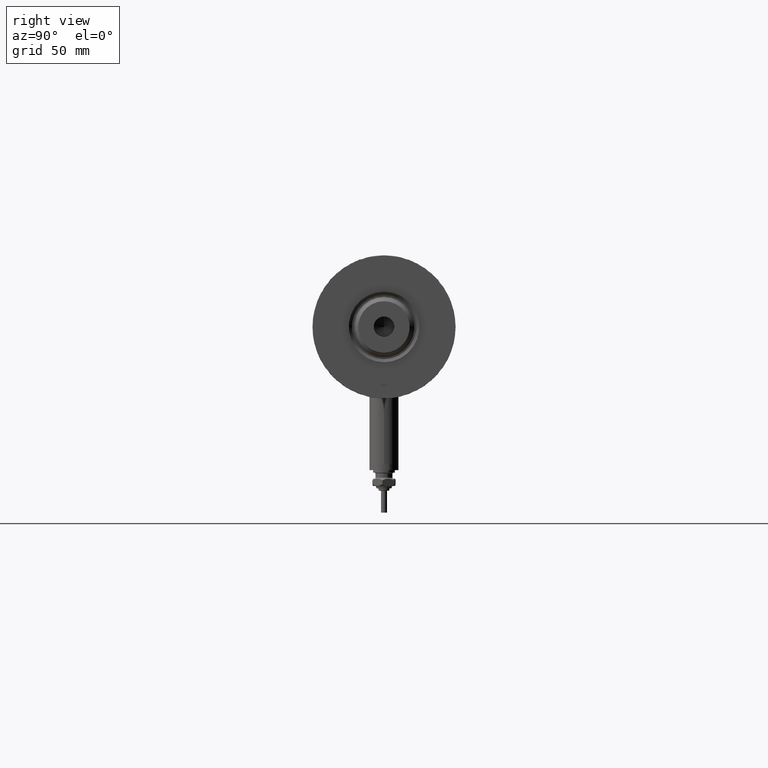
[diagram: clean part render]
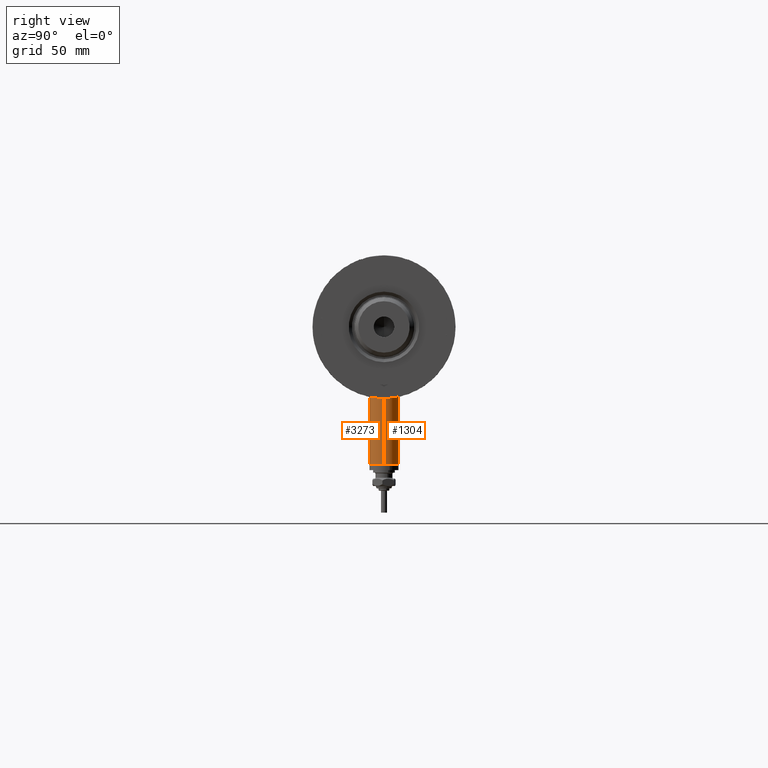
[diagram: same view with one multi-face feature highlighted, each face labeled with its STEP entity id]
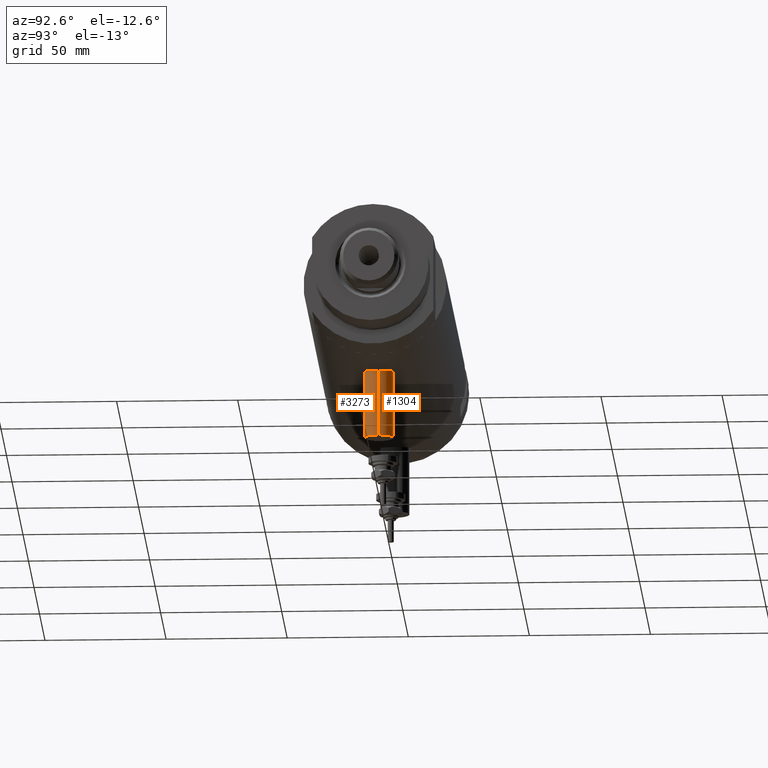
[diagram: same view with one multi-face feature highlighted, each face labeled with its STEP entity id]
A machine part, right view. The highlighted faces form ONE feature: a constant-radius fillet chain: 2 tangent blend faces with common blend radius 6 mm. The faces share edges in the B-rep.
A second angle (auxiliary view) of the same feature is appended — it is thin or edge-on in the first view.
Their STEP definitions:
[1] entity #1304 (Cylinder):
#3 = DIRECTION ( 'NONE',  ( -1.000000000000000000, 0.000000000000000000, 0.000000000000000000 ) ) ;
#74 = VERTEX_POINT ( 'NONE', #5805 ) ;
#307 = LINE ( 'NONE', #5391, #1855 ) ;
#330 = CIRCLE ( 'NONE', #4016, 6.000000000000005329 ) ;
#725 = ORIENTED_EDGE ( 'NONE', *, *, #3343, .T. ) ;
#767 = EDGE_CURVE ( 'NONE', #2793, #5567, #330, .T. ) ;
#846 = DIRECTION ( 'NONE',  ( 1.000000000000000000, -0.000000000000000000, -0.000000000000000000 ) ) ;
#1272 = DIRECTION ( 'NONE',  ( 0.000000000000000000, 0.000000000000000000, -1.000000000000000000 ) ) ;
#1304 = ADVANCED_FACE ( 'NONE', ( #5321 ), #4464, .T. ) ;
#1524 = CARTESIAN_POINT ( 'NONE',  ( -56.60000000000000142, 7.347880794884119736E-16, -60.29999999999999005 ) ) ;
#1711 = CARTESIAN_POINT ( 'NONE',  ( -56.60000000000000142, 0.000000000000000000, -66.29999999999999716 ) ) ;
#1811 = DIRECTION ( 'NONE',  ( 0.000000000000000000, 0.000000000000000000, 1.000000000000000000 ) ) ;
#1836 = DIRECTION ( 'NONE',  ( 0.000000000000000000, 0.000000000000000000, 1.000000000000000000 ) ) ;
#1849 = VERTEX_POINT ( 'NONE', #4020 ) ;
#1855 = VECTOR ( 'NONE', #846, 1000.000000000000000 ) ;
#1977 = ORIENTED_EDGE ( 'NONE', *, *, #3692, .T. ) ;
#2539 = AXIS2_PLACEMENT_3D ( 'NONE', #2770, #3695, #1836 ) ;
#2606 = DIRECTION ( 'NONE',  ( 1.000000000000000000, -0.000000000000000000, -0.000000000000000000 ) ) ;
#2639 = DIRECTION ( 'NONE',  ( 1.000000000000000000, -0.000000000000000000, -0.000000000000000000 ) ) ;
#2770 = CARTESIAN_POINT ( 'NONE',  ( -28.30000000000000071, 0.000000000000000000, -66.29999999999999716 ) ) ;
#2793 = VERTEX_POINT ( 'NONE', #1524 ) ;
#3037 = LINE ( 'NONE', #4924, #3410 ) ;
#3343 = EDGE_CURVE ( 'NONE', #1849, #74, #3948, .T. ) ;
#3410 = VECTOR ( 'NONE', #2639, 1000.000000000000000 ) ;
#3477 = ORIENTED_EDGE ( 'NONE', *, *, #5590, .F. ) ;
#3670 = EDGE_LOOP ( 'NONE', ( #4598, #1977, #725, #3477 ) ) ;
#3692 = EDGE_CURVE ( 'NONE', #2793, #1849, #3037, .T. ) ;
#3695 = DIRECTION ( 'NONE',  ( -1.000000000000000000, 0.000000000000000000, 0.000000000000000000 ) ) ;
#3948 = CIRCLE ( 'NONE', #2539, 6.000000000000005329 ) ;
#4016 = AXIS2_PLACEMENT_3D ( 'NONE', #5451, #3, #1811 ) ;
#4020 = CARTESIAN_POINT ( 'NONE',  ( -28.30000000000000071, 7.347880794884119736E-16, -60.29999999999999005 ) ) ;
#4464 = CYLINDRICAL_SURFACE ( 'NONE', #5873, 6.000000000000005329 ) ;
#4598 = ORIENTED_EDGE ( 'NONE', *, *, #767, .F. ) ;
#4924 = CARTESIAN_POINT ( 'NONE',  ( -56.60000000000000142, 7.347880794884122694E-16, -60.29999999999999005 ) ) ;
#4964 = CARTESIAN_POINT ( 'NONE',  ( -56.60000000000000142, 0.000000000000000000, -72.29999999999999716 ) ) ;
#5321 = FACE_OUTER_BOUND ( 'NONE', #3670, .T. ) ;
#5391 = CARTESIAN_POINT ( 'NONE',  ( -56.60000000000000142, 0.000000000000000000, -72.29999999999999716 ) ) ;
#5451 = CARTESIAN_POINT ( 'NONE',  ( -56.60000000000000142, 0.000000000000000000, -66.29999999999999716 ) ) ;
#5567 = VERTEX_POINT ( 'NONE', #4964 ) ;
#5590 = EDGE_CURVE ( 'NONE', #5567, #74, #307, .T. ) ;
#5805 = CARTESIAN_POINT ( 'NONE',  ( -28.30000000000000071, 0.000000000000000000, -72.29999999999999716 ) ) ;
#5873 = AXIS2_PLACEMENT_3D ( 'NONE', #1711, #2606, #1272 ) ;
[2] entity #3273 (Cylinder):
#74 = VERTEX_POINT ( 'NONE', #5805 ) ;
#130 = DIRECTION ( 'NONE',  ( 0.000000000000000000, 0.000000000000000000, 1.000000000000000000 ) ) ;
#307 = LINE ( 'NONE', #5391, #1855 ) ;
#557 = CIRCLE ( 'NONE', #2839, 6.000000000000005329 ) ;
#842 = FACE_OUTER_BOUND ( 'NONE', #4288, .T. ) ;
#846 = DIRECTION ( 'NONE',  ( 1.000000000000000000, -0.000000000000000000, -0.000000000000000000 ) ) ;
#1111 = ORIENTED_EDGE ( 'NONE', *, *, #3445, .F. ) ;
#1141 = DIRECTION ( 'NONE',  ( 0.000000000000000000, 0.000000000000000000, 1.000000000000000000 ) ) ;
#1524 = CARTESIAN_POINT ( 'NONE',  ( -56.60000000000000142, 7.347880794884119736E-16, -60.29999999999999005 ) ) ;
#1580 = CARTESIAN_POINT ( 'NONE',  ( -28.30000000000000071, 0.000000000000000000, -66.29999999999999716 ) ) ;
#1631 = ORIENTED_EDGE ( 'NONE', *, *, #3905, .T. ) ;
#1659 = ORIENTED_EDGE ( 'NONE', *, *, #3692, .F. ) ;
#1717 = DIRECTION ( 'NONE',  ( 1.000000000000000000, -0.000000000000000000, -0.000000000000000000 ) ) ;
#1849 = VERTEX_POINT ( 'NONE', #4020 ) ;
#1855 = VECTOR ( 'NONE', #846, 1000.000000000000000 ) ;
#2147 = AXIS2_PLACEMENT_3D ( 'NONE', #2389, #4196, #130 ) ;
#2167 = CARTESIAN_POINT ( 'NONE',  ( -56.60000000000000142, 0.000000000000000000, -66.29999999999999716 ) ) ;
#2389 = CARTESIAN_POINT ( 'NONE',  ( -56.60000000000000142, 0.000000000000000000, -66.29999999999999716 ) ) ;
#2454 = CIRCLE ( 'NONE', #2147, 6.000000000000005329 ) ;
#2639 = DIRECTION ( 'NONE',  ( 1.000000000000000000, -0.000000000000000000, -0.000000000000000000 ) ) ;
#2793 = VERTEX_POINT ( 'NONE', #1524 ) ;
#2839 = AXIS2_PLACEMENT_3D ( 'NONE', #1580, #3856, #1141 ) ;
#3037 = LINE ( 'NONE', #4924, #3410 ) ;
#3273 = ADVANCED_FACE ( 'NONE', ( #842 ), #4894, .T. ) ;
#3410 = VECTOR ( 'NONE', #2639, 1000.000000000000000 ) ;
#3445 = EDGE_CURVE ( 'NONE', #5567, #2793, #2454, .T. ) ;
#3571 = DIRECTION ( 'NONE',  ( 0.000000000000000000, 0.000000000000000000, -1.000000000000000000 ) ) ;
#3692 = EDGE_CURVE ( 'NONE', #2793, #1849, #3037, .T. ) ;
#3787 = AXIS2_PLACEMENT_3D ( 'NONE', #2167, #1717, #3571 ) ;
#3856 = DIRECTION ( 'NONE',  ( -1.000000000000000000, 0.000000000000000000, 0.000000000000000000 ) ) ;
#3905 = EDGE_CURVE ( 'NONE', #74, #1849, #557, .T. ) ;
#4020 = CARTESIAN_POINT ( 'NONE',  ( -28.30000000000000071, 7.347880794884119736E-16, -60.29999999999999005 ) ) ;
#4196 = DIRECTION ( 'NONE',  ( -1.000000000000000000, 0.000000000000000000, 0.000000000000000000 ) ) ;
#4288 = EDGE_LOOP ( 'NONE', ( #1659, #1111, #4368, #1631 ) ) ;
#4368 = ORIENTED_EDGE ( 'NONE', *, *, #5590, .T. ) ;
#4894 = CYLINDRICAL_SURFACE ( 'NONE', #3787, 6.000000000000005329 ) ;
#4924 = CARTESIAN_POINT ( 'NONE',  ( -56.60000000000000142, 7.347880794884122694E-16, -60.29999999999999005 ) ) ;
#4964 = CARTESIAN_POINT ( 'NONE',  ( -56.60000000000000142, 0.000000000000000000, -72.29999999999999716 ) ) ;
#5391 = CARTESIAN_POINT ( 'NONE',  ( -56.60000000000000142, 0.000000000000000000, -72.29999999999999716 ) ) ;
#5567 = VERTEX_POINT ( 'NONE', #4964 ) ;
#5590 = EDGE_CURVE ( 'NONE', #5567, #74, #307, .T. ) ;
#5805 = CARTESIAN_POINT ( 'NONE',  ( -28.30000000000000071, 0.000000000000000000, -72.29999999999999716 ) ) ;